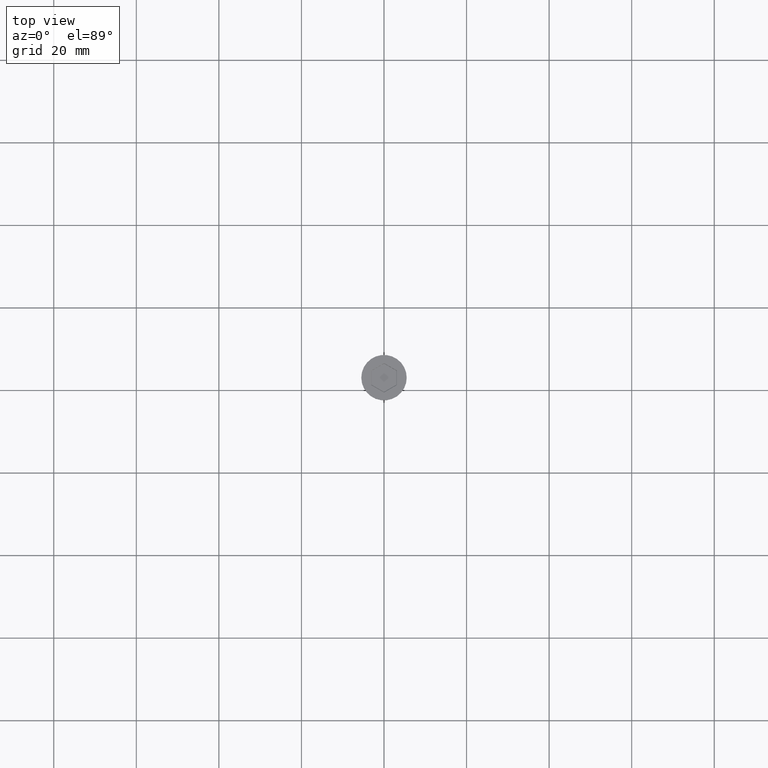
[diagram: clean part render]
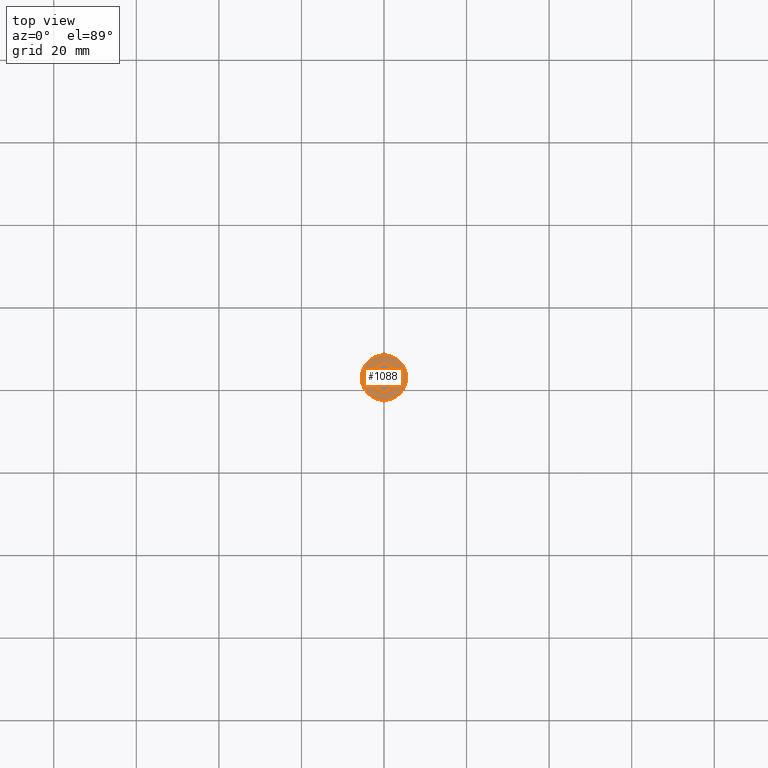
[diagram: same view with one face highlighted and labeled with its STEP entity id]
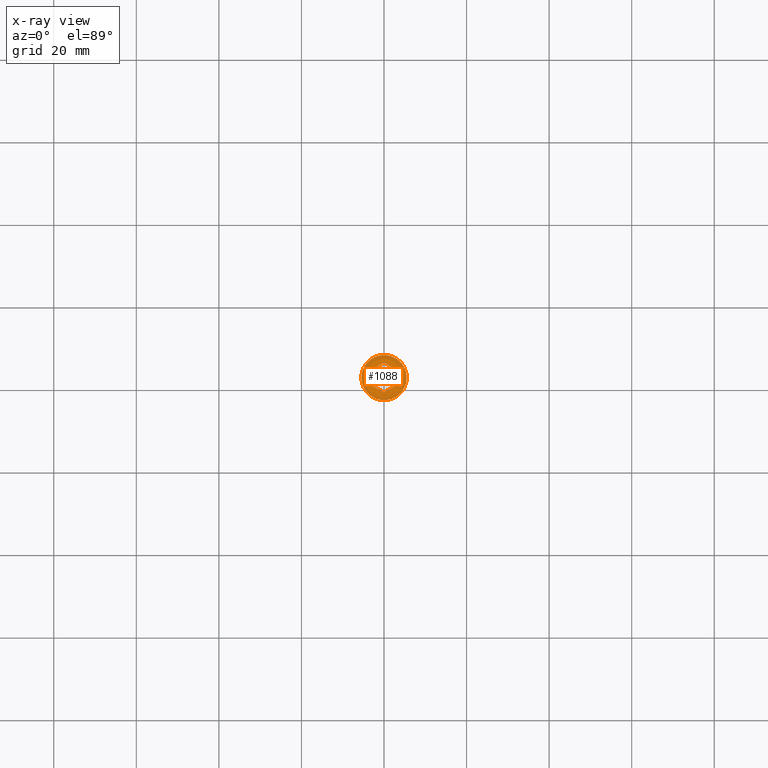
[diagram: x-ray of the same camera — body ghosted, the highlighted face saturated]
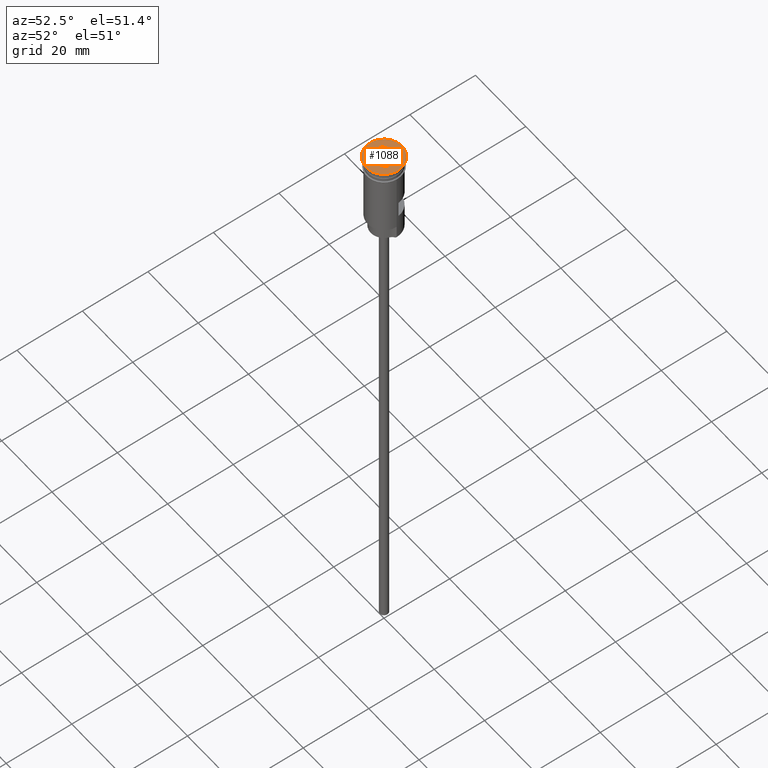
[diagram: same view with one face highlighted and labeled with its STEP entity id]
A machine part, top view. The second image highlights one B-rep face of the part: STEP entity #1088.
The next image is the same camera in x-ray: the body ghosted, the highlighted face saturated — about 0% of this face is hidden behind the body in this view.
A second angle (auxiliary view) of the same face is appended — the face is thin or edge-on in the first view.
In plain terms, the highlighted planar face has unit normal (0, -0, 1).
Its self-contained STEP definition (entity closure, byte-faithful):
#8 = AXIS2_PLACEMENT_3D ( 'NONE', #412, #1131, #25 ) ;
#25 = DIRECTION ( 'NONE',  ( 1.000000000000000000, 0.000000000000000000, 0.000000000000000000 ) ) ;
#49 = CARTESIAN_POINT ( 'NONE',  ( -1.958864205101993824E-16, -3.579571668975658927, 0.000000000000000000 ) ) ;
#52 = CIRCLE ( 'NONE', #552, 5.500000000000000000 ) ;
#104 = CARTESIAN_POINT ( 'NONE',  ( -3.099999999999983213, 1.789785834487829908, 0.000000000000000000 ) ) ;
#141 = DIRECTION ( 'NONE',  ( 0.000000000000000000, -0.000000000000000000, 1.000000000000000000 ) ) ;
#163 = CARTESIAN_POINT ( 'NONE',  ( 6.103073414120078086E-16, 3.579571668975660259, 0.000000000000000000 ) ) ;
#171 = CARTESIAN_POINT ( 'NONE',  ( 0.04999999999999141936, -3.550704155516182237, 0.000000000000000000 ) ) ;
#192 = ORIENTED_EDGE ( 'NONE', *, *, #420, .T. ) ;
#199 = VERTEX_POINT ( 'NONE', #1179 ) ;
#211 = VERTEX_POINT ( 'NONE', #836 ) ;
#237 = VECTOR ( 'NONE', #1020, 1000.000000000000114 ) ;
#247 = DIRECTION ( 'NONE',  ( 0.000000000000000000, 1.000000000000000000, 0.000000000000000000 ) ) ;
#293 = EDGE_CURVE ( 'NONE', #757, #211, #1010, .T. ) ;
#301 = VERTEX_POINT ( 'NONE', #1577 ) ;
#357 = CARTESIAN_POINT ( 'NONE',  ( -3.049999999999991385, -1.818653347947305932, 0.000000000000000000 ) ) ;
#385 = DIRECTION ( 'NONE',  ( -1.251928832280966188E-16, -1.000000000000000000, 0.000000000000000000 ) ) ;
#412 = CARTESIAN_POINT ( 'NONE',  ( 0.000000000000000000, 0.000000000000000000, 0.000000000000000000 ) ) ;
#420 = EDGE_CURVE ( 'NONE', #301, #199, #52, .T. ) ;
#459 = CARTESIAN_POINT ( 'NONE',  ( 0.000000000000000000, 0.000000000000000000, 0.000000000000000000 ) ) ;
#463 = LINE ( 'NONE', #171, #1197 ) ;
#472 = ORIENTED_EDGE ( 'NONE', *, *, #1128, .T. ) ;
#499 = DIRECTION ( 'NONE',  ( 0.8660254037844387076, 0.4999999999999998890, 0.000000000000000000 ) ) ;
#504 = VECTOR ( 'NONE', #247, 1000.000000000000000 ) ;
#518 = EDGE_LOOP ( 'NONE', ( #751, #621, #674, #1525, #819, #733 ) ) ;
#519 = DIRECTION ( 'NONE',  ( 1.000000000000000000, 0.000000000000000000, 0.000000000000000000 ) ) ;
#526 = VECTOR ( 'NONE', #499, 1000.000000000000000 ) ;
#534 = CARTESIAN_POINT ( 'NONE',  ( 3.049999999999991829, 1.818653347947307708, 0.000000000000000000 ) ) ;
#537 = EDGE_CURVE ( 'NONE', #1422, #943, #1122, .T. ) ;
#552 = AXIS2_PLACEMENT_3D ( 'NONE', #459, #936, #822 ) ;
#588 = EDGE_LOOP ( 'NONE', ( #472, #192 ) ) ;
#613 = LINE ( 'NONE', #842, #526 ) ;
#616 = LINE ( 'NONE', #357, #1537 ) ;
#621 = ORIENTED_EDGE ( 'NONE', *, *, #1003, .T. ) ;
#674 = ORIENTED_EDGE ( 'NONE', *, *, #1499, .T. ) ;
#701 = CIRCLE ( 'NONE', #8, 5.500000000000000000 ) ;
#733 = ORIENTED_EDGE ( 'NONE', *, *, #990, .T. ) ;
#744 = CARTESIAN_POINT ( 'NONE',  ( -3.099999999999983213, 1.732050807568876971, 0.000000000000000000 ) ) ;
#751 = ORIENTED_EDGE ( 'NONE', *, *, #537, .T. ) ;
#757 = VERTEX_POINT ( 'NONE', #1533 ) ;
#786 = PLANE ( 'NONE',  #1489 ) ;
#819 = ORIENTED_EDGE ( 'NONE', *, *, #1277, .T. ) ;
#822 = DIRECTION ( 'NONE',  ( 1.000000000000000000, 0.000000000000000000, 0.000000000000000000 ) ) ;
#836 = CARTESIAN_POINT ( 'NONE',  ( 3.099999999999982769, -1.789785834487828353, 0.000000000000000000 ) ) ;
#842 = CARTESIAN_POINT ( 'NONE',  ( -0.04999999999999187039, 3.550704155516183125, 0.000000000000000000 ) ) ;
#936 = DIRECTION ( 'NONE',  ( -0.000000000000000000, -0.000000000000000000, 1.000000000000000000 ) ) ;
#943 = VERTEX_POINT ( 'NONE', #104 ) ;
#990 = EDGE_CURVE ( 'NONE', #1165, #1422, #616, .T. ) ;
#1003 = EDGE_CURVE ( 'NONE', #943, #1192, #613, .T. ) ;
#1008 = VECTOR ( 'NONE', #385, 1000.000000000000000 ) ;
#1010 = LINE ( 'NONE', #1493, #1008 ) ;
#1020 = DIRECTION ( 'NONE',  ( 0.8660254037844388186, -0.4999999999999997780, 0.000000000000000000 ) ) ;
#1021 = CARTESIAN_POINT ( 'NONE',  ( 0.000000000000000000, 0.000000000000000000, 0.000000000000000000 ) ) ;
#1088 = ADVANCED_FACE ( 'NONE', ( #1126, #1148 ), #786, .T. ) ;
#1090 = DIRECTION ( 'NONE',  ( -0.8660254037844387076, 0.4999999999999998335, 0.000000000000000000 ) ) ;
#1122 = LINE ( 'NONE', #744, #504 ) ;
#1126 = FACE_BOUND ( 'NONE', #518, .T. ) ;
#1128 = EDGE_CURVE ( 'NONE', #199, #301, #701, .T. ) ;
#1131 = DIRECTION ( 'NONE',  ( -0.000000000000000000, -0.000000000000000000, 1.000000000000000000 ) ) ;
#1148 = FACE_OUTER_BOUND ( 'NONE', #588, .T. ) ;
#1165 = VERTEX_POINT ( 'NONE', #49 ) ;
#1179 = CARTESIAN_POINT ( 'NONE',  ( 5.500000000000000000, 0.000000000000000000, 0.000000000000000000 ) ) ;
#1192 = VERTEX_POINT ( 'NONE', #163 ) ;
#1197 = VECTOR ( 'NONE', #1447, 1000.000000000000114 ) ;
#1277 = EDGE_CURVE ( 'NONE', #211, #1165, #463, .T. ) ;
#1422 = VERTEX_POINT ( 'NONE', #1494 ) ;
#1447 = DIRECTION ( 'NONE',  ( -0.8660254037844385966, -0.5000000000000001110, 0.000000000000000000 ) ) ;
#1489 = AXIS2_PLACEMENT_3D ( 'NONE', #1021, #141, #519 ) ;
#1493 = CARTESIAN_POINT ( 'NONE',  ( 3.099999999999982769, -1.732050807568876083, 0.000000000000000000 ) ) ;
#1494 = CARTESIAN_POINT ( 'NONE',  ( -3.099999999999983213, -1.789785834487829241, 0.000000000000000000 ) ) ;
#1499 = EDGE_CURVE ( 'NONE', #1192, #757, #1516, .T. ) ;
#1516 = LINE ( 'NONE', #534, #237 ) ;
#1525 = ORIENTED_EDGE ( 'NONE', *, *, #293, .T. ) ;
#1533 = CARTESIAN_POINT ( 'NONE',  ( 3.099999999999983213, 1.789785834487831462, 0.000000000000000000 ) ) ;
#1537 = VECTOR ( 'NONE', #1090, 1000.000000000000000 ) ;
#1577 = CARTESIAN_POINT ( 'NONE',  ( -5.500000000000000000, 6.735557395310442023E-16, 0.000000000000000000 ) ) ;